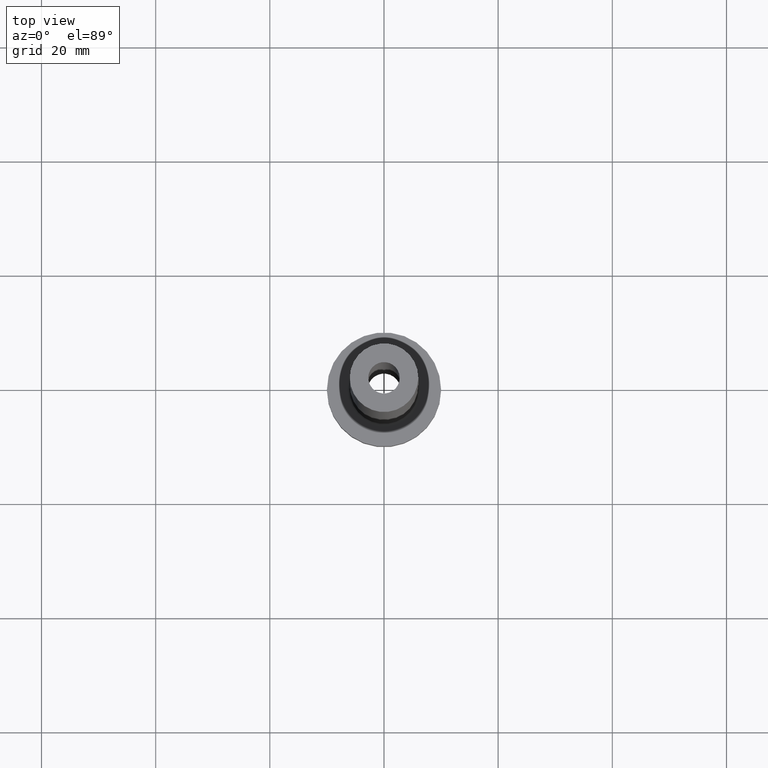
[diagram: clean part render]
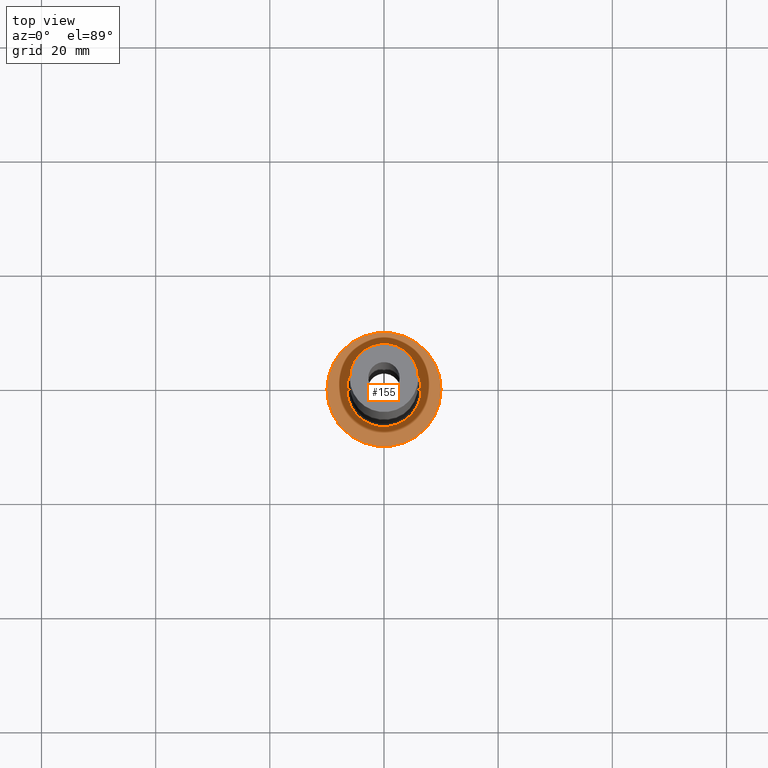
[diagram: same view with one face highlighted and labeled with its STEP entity id]
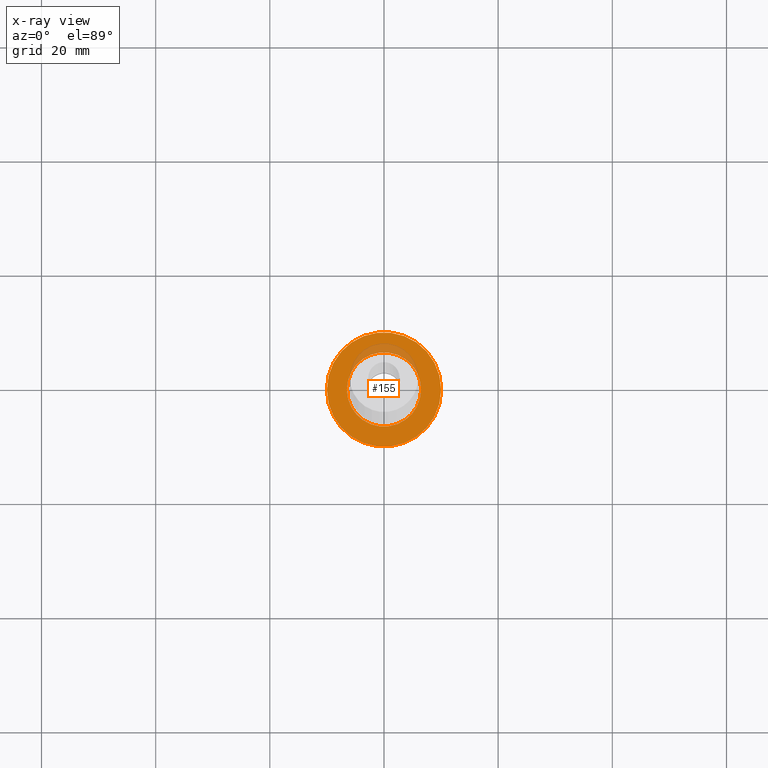
[diagram: x-ray of the same camera — body ghosted, the highlighted face saturated]
A machine part, top view. The second image highlights one B-rep face of the part: STEP entity #155.
The next image is the same camera in x-ray: the body ghosted, the highlighted face saturated — about 9% of this face is hidden behind the body in this view.
In plain terms, the highlighted planar face has unit normal (0, 0, 1).
Its self-contained STEP definition (entity closure, byte-faithful):
#2 = FACE_BOUND ( 'NONE', #112, .T. ) ;
#20 = EDGE_CURVE ( 'NONE', #106, #128, #195, .T. ) ;
#38 = CARTESIAN_POINT ( 'NONE',  ( -6.500000000000000888, 7.960204194457796463E-16, 7.000000000000002665 ) ) ;
#39 = DIRECTION ( 'NONE',  ( 1.000000000000000000, 0.000000000000000000, 0.000000000000000000 ) ) ;
#64 = CARTESIAN_POINT ( 'NONE',  ( 0.000000000000000000, 0.000000000000000000, 7.000000000000000000 ) ) ;
#66 = AXIS2_PLACEMENT_3D ( 'NONE', #305, #389, #376 ) ;
#99 = CIRCLE ( 'NONE', #331, 6.500000000000000888 ) ;
#106 = VERTEX_POINT ( 'NONE', #334 ) ;
#107 = EDGE_CURVE ( 'NONE', #259, #137, #99, .T. ) ;
#112 = EDGE_LOOP ( 'NONE', ( #320, #206 ) ) ;
#128 = VERTEX_POINT ( 'NONE', #344 ) ;
#131 = CIRCLE ( 'NONE', #401, 10.00000000000000000 ) ;
#134 = ORIENTED_EDGE ( 'NONE', *, *, #20, .T. ) ;
#135 = ORIENTED_EDGE ( 'NONE', *, *, #163, .T. ) ;
#137 = VERTEX_POINT ( 'NONE', #38 ) ;
#155 = ADVANCED_FACE ( 'NONE', ( #2, #316 ), #248, .T. ) ;
#158 = DIRECTION ( 'NONE',  ( 1.000000000000000000, 0.000000000000000000, -0.000000000000000000 ) ) ;
#163 = EDGE_CURVE ( 'NONE', #128, #106, #131, .T. ) ;
#167 = CARTESIAN_POINT ( 'NONE',  ( 6.500000000000000888, 0.000000000000000000, 7.000000000000002665 ) ) ;
#170 = DIRECTION ( 'NONE',  ( 1.000000000000000000, 0.000000000000000000, 0.000000000000000000 ) ) ;
#173 = DIRECTION ( 'NONE',  ( 0.000000000000000000, 0.000000000000000000, 1.000000000000000000 ) ) ;
#177 = EDGE_LOOP ( 'NONE', ( #134, #135 ) ) ;
#191 = CARTESIAN_POINT ( 'NONE',  ( 0.000000000000000000, 0.000000000000000000, 7.000000000000000000 ) ) ;
#195 = CIRCLE ( 'NONE', #317, 10.00000000000000000 ) ;
#206 = ORIENTED_EDGE ( 'NONE', *, *, #302, .T. ) ;
#213 = CARTESIAN_POINT ( 'NONE',  ( 0.000000000000000000, 0.000000000000000000, 7.000000000000000000 ) ) ;
#220 = DIRECTION ( 'NONE',  ( 0.000000000000000000, 0.000000000000000000, 1.000000000000000000 ) ) ;
#248 = PLANE ( 'NONE',  #355 ) ;
#259 = VERTEX_POINT ( 'NONE', #167 ) ;
#302 = EDGE_CURVE ( 'NONE', #137, #259, #447, .T. ) ;
#305 = CARTESIAN_POINT ( 'NONE',  ( 0.000000000000000000, 0.000000000000000000, 7.000000000000000000 ) ) ;
#316 = FACE_OUTER_BOUND ( 'NONE', #177, .T. ) ;
#317 = AXIS2_PLACEMENT_3D ( 'NONE', #213, #220, #428 ) ;
#320 = ORIENTED_EDGE ( 'NONE', *, *, #107, .T. ) ;
#329 = DIRECTION ( 'NONE',  ( -0.000000000000000000, -0.000000000000000000, -1.000000000000000000 ) ) ;
#331 = AXIS2_PLACEMENT_3D ( 'NONE', #191, #329, #170 ) ;
#334 = CARTESIAN_POINT ( 'NONE',  ( -10.00000000000000000, 0.000000000000000000, 7.000000000000000000 ) ) ;
#344 = CARTESIAN_POINT ( 'NONE',  ( 10.00000000000000000, 1.224646799147353256E-15, 7.000000000000000000 ) ) ;
#355 = AXIS2_PLACEMENT_3D ( 'NONE', #404, #360, #158 ) ;
#360 = DIRECTION ( 'NONE',  ( 0.000000000000000000, 0.000000000000000000, 1.000000000000000000 ) ) ;
#376 = DIRECTION ( 'NONE',  ( 1.000000000000000000, 0.000000000000000000, 0.000000000000000000 ) ) ;
#389 = DIRECTION ( 'NONE',  ( -0.000000000000000000, -0.000000000000000000, -1.000000000000000000 ) ) ;
#401 = AXIS2_PLACEMENT_3D ( 'NONE', #64, #173, #39 ) ;
#404 = CARTESIAN_POINT ( 'NONE',  ( 0.000000000000000000, 0.000000000000000000, 7.000000000000000000 ) ) ;
#428 = DIRECTION ( 'NONE',  ( 1.000000000000000000, 0.000000000000000000, 0.000000000000000000 ) ) ;
#447 = CIRCLE ( 'NONE', #66, 6.500000000000000888 ) ;